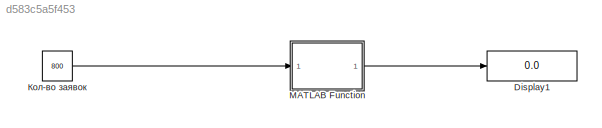
MODEL slx_d583c5a5f453
KIND model
CONFIG AbsTol = auto
CONFIG EnableMultiTasking = off
CONFIG FixedStep = auto
CONFIG MaxStep = auto
CONFIG MinStep = auto
CONFIG RelTol = 1e-3
CONFIG SampleTimeConstraint = Unconstrained
CONFIG SolverName = VariableStepAuto
CONFIG StartTime = 0.0
CONFIG StopTime = 10.0
BLOCK [Display] Display1
  Decimation = 1
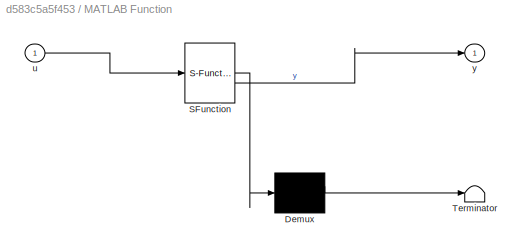
BLOCK [SubSystem] MATLAB Function
  ErrorFcn = Stateflow.Translate.translate
  PermitHierarchicalResolution = ExplicitOnly
  SFBlockType = MATLAB Function
  TreatAsAtomicUnit = on
BLOCK [Demux] MATLAB Function/ Demux 
  Outputs = 1
BLOCK [S-Function] MATLAB Function/ SFunction 
  EnableBusSupport = on
  FunctionName = sf_sfun
  PortCounts = [1 2]
  SFcnIsStateOwnerBlock = off
  SFunctionDeploymentMode = off
  Tag = Stateflow S-Function 2
BLOCK [Terminator] MATLAB Function/ Terminator 
BLOCK [Inport] MATLAB Function/u
BLOCK [Outport] MATLAB Function/y
BLOCK [Constant] Кол-во заявок
  Value = 800
LINE MATLAB Function:1 -> Display1:1
LINE Кол-во заявок:1 -> MATLAB Function:1
CHART MATLAB Function states=1 transitions=1
  STATE_LABEL 'eML_blk_kernel()'
  STATE_LABEL 'SCRIPT:\nfunction y = fcn(u)\n   %define params\n    lambda = 30;\n    mu = 20;\n    n = 6;\n    m = 5;\n    \n    %compute mark chain params\n    rho = lambda/mu;\n    \n    p0 = 1 / (sum(arrayfun(@(k) rho^k/factorial(k), 0:n-1)) + rho^n/factorial(n) * (1-rho^m)/(1-rho));\n    \n    P_otk = rho^(n+m)/(n^m*factorial(n)) * p0;\n    \n    Q = 1 - P_otk;\n    \n    A = lambda * Q;\n    \n    k_zan = A / mu;\n    \n    L_...<+402ch>'
CHART  states=0 transitions=0
